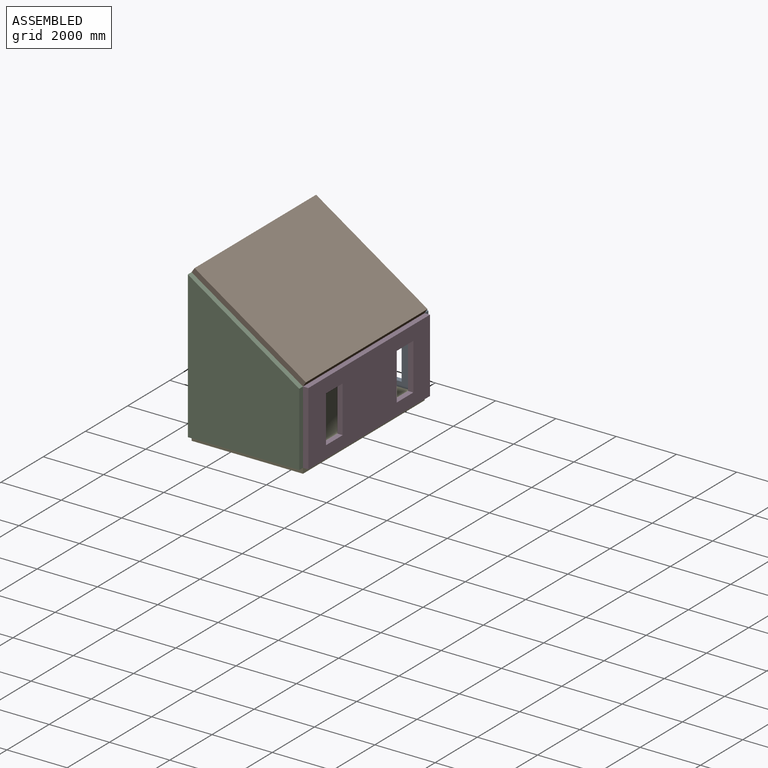
[diagram: assembled view]
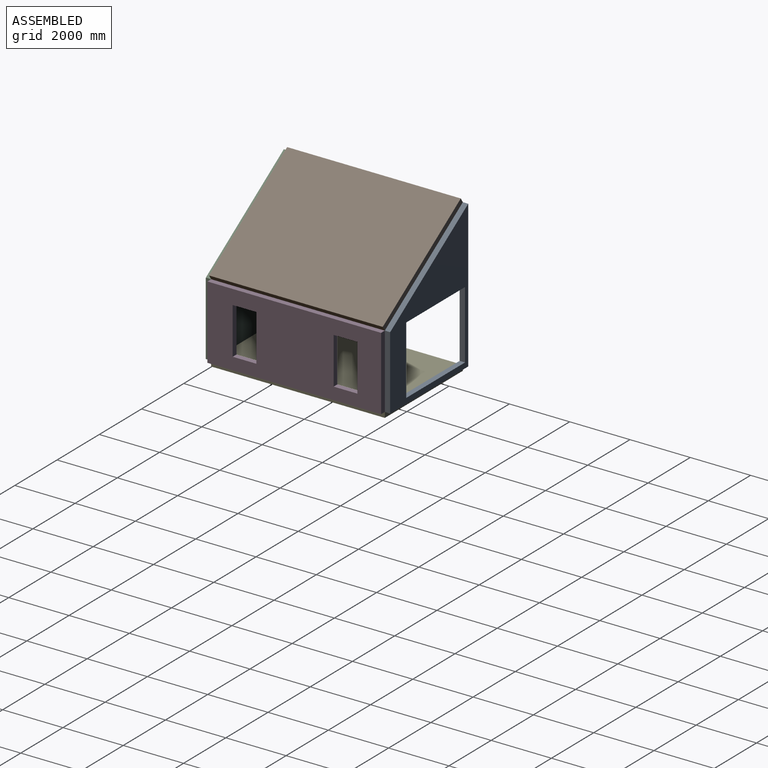
[diagram: assembled view, second angle]
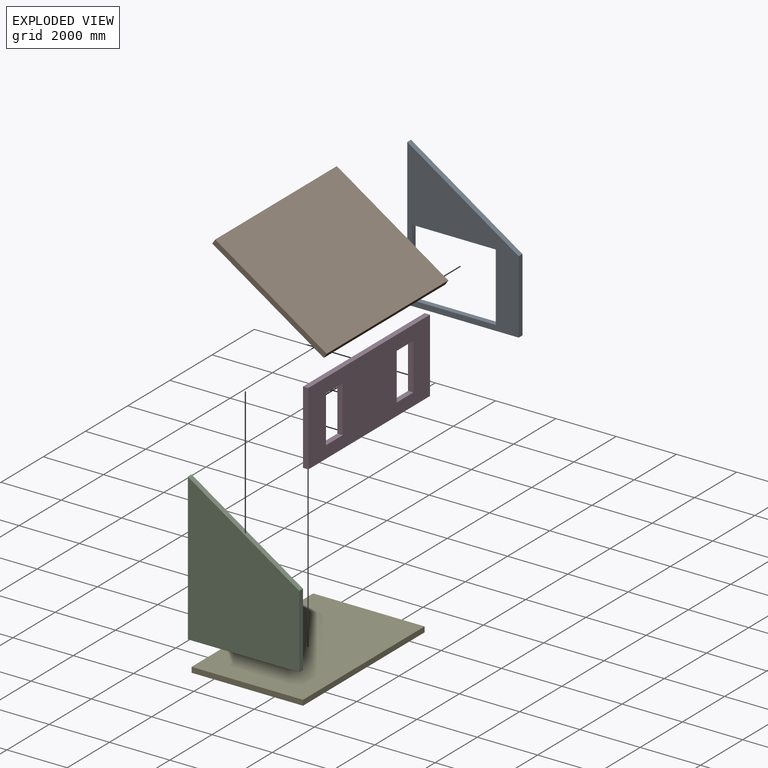
[diagram: exploded view]
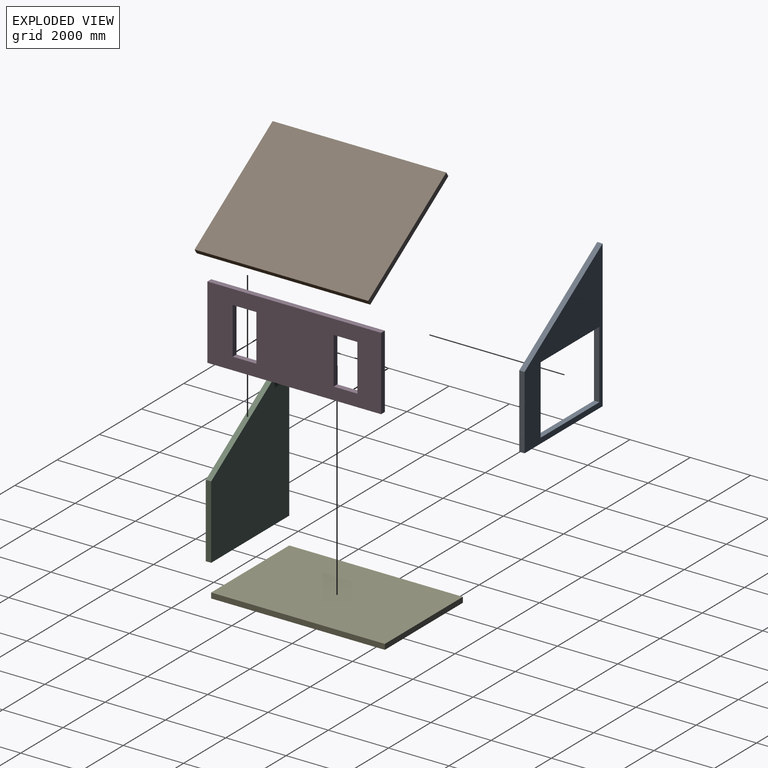
[diagram: exploded view, second angle]
ASSEMBLY  parts=5 mates=4
PART A: 10 faces, bbox 177.8x3695.7x4876.8 mm
  f0: plane 4876.8x3695.7mm, normal (1,0,0), area 7229985.5mm2, adj f2,f3,f4,f5,f6,f7,f8,f9
  f1: plane 4876.8x3695.7mm, normal (-1,0,0), area 7229985.5mm2, adj f2,f3,f4,f5,f6,f7,f8,f9
  f2: plane 2438.4x177.8mm, normal (0,-1,0), area 433547.5mm2, adj f0,f1,f3,f5
  f3: plane 3695.7x177.8mm, normal (0,0,-1), area 657095.5mm2, adj f0,f1,f2,f4
  f4: plane 4876.8x177.8mm, normal (0,1,0), area 867095mm2, adj f0,f1,f3,f5
  f5: plane 3695.7x2438.4mm, normal (0,-0.55,0.83), area 787234.3mm2, adj f0,f1,f2,f4
  f6: plane 2260.6x177.8mm, normal (0,1,0), area 401934.7mm2, adj f0,f1,f7,f9
  f7: plane 2781.3x177.8mm, normal (0,0,1), area 494515.1mm2, adj f0,f1,f6,f8
  f8: plane 2260.6x177.8mm, normal (0,-1,0), area 401934.7mm2, adj f0,f1,f7,f9
  f9: plane 2781.3x177.8mm, normal (0,0,-1), area 494515.1mm2, adj f0,f1,f6,f8
PART B: 6 faces, bbox 177.8x5759.5x4427.7 mm
  f0: plane 5759.45x177.8mm, normal (0,0,1), area 1024030.2mm2, adj f1,f3,f4,f5
  f1: plane 4427.65x177.8mm, normal (0,-1,0), area 787236.5mm2, adj f0,f2,f4,f5
  f2: plane 5759.45x177.8mm, normal (0,0,-1), area 1024030.2mm2, adj f1,f3,f4,f5
  f3: plane 4427.65x177.8mm, normal (0,1,0), area 787236.5mm2, adj f0,f2,f4,f5
  f4: plane 5759.45x4427.65mm, normal (1,0,0), area 25500839.2mm2, adj f0,f1,f2,f3
  f5: plane 5759.45x4427.65mm, normal (-1,0,0), area 25500839.2mm2, adj f0,f1,f2,f3
PART C: 6 faces, bbox 177.8x3695.7x4876.8 mm
  f0: plane 4876.8x177.8mm, normal (0,-1,0), area 867095mm2, adj f1,f3,f4,f5
  f1: plane 3695.7x177.8mm, normal (0,0,-1), area 657095.5mm2, adj f0,f2,f4,f5
  f2: plane 2438.4x177.8mm, normal (0,1,0), area 433547.5mm2, adj f1,f3,f4,f5
  f3: plane 3695.7x2438.4mm, normal (0,0.55,0.83), area 787234.3mm2, adj f0,f2,f4,f5
  f4: plane 4876.8x3695.7mm, normal (1,0,0), area 13517392.3mm2, adj f0,f1,f2,f3
  f5: plane 4876.8x3695.7mm, normal (-1,0,0), area 13517392.3mm2, adj f0,f1,f2,f3
PART D: 14 faces, bbox 177.8x5759.5x2438.4 mm
  f0: plane 5759.45x2438.4mm, normal (1,0,0), area 11603847.8mm2, adj f2,f3,f4,f5,f6,f7,f8,f9
  f1: plane 5759.45x2438.4mm, normal (-1,0,0), area 11603847.8mm2, adj f2,f3,f4,f5,f6,f7,f8,f9
  f2: plane 5759.45x177.8mm, normal (0,0,1), area 1024030.2mm2, adj f0,f1,f3,f5
  f3: plane 2438.4x177.8mm, normal (0,-1,0), area 433547.5mm2, adj f0,f1,f2,f4
  f4: plane 5759.45x177.8mm, normal (0,0,-1), area 1024030.2mm2, adj f0,f1,f3,f5
  f5: plane 2438.4x177.8mm, normal (0,1,0), area 433547.5mm2, adj f0,f1,f2,f4
  f6: plane 787.4x177.8mm, normal (0,0,-1), area 139999.7mm2, adj f0,f1,f7,f9
  f7: plane 1549.4x177.8mm, normal (0,1,0), area 275483.3mm2, adj f0,f1,f6,f8
  f8: plane 787.4x177.8mm, normal (0,0,1), area 139999.7mm2, adj f0,f1,f7,f9
  f9: plane 1549.4x177.8mm, normal (0,-1,0), area 275483.3mm2, adj f0,f1,f6,f8
  f10: plane 787.4x177.8mm, normal (0,0,-1), area 139999.7mm2, adj f0,f1,f11,f13
  f11: plane 1549.4x177.8mm, normal (0,1,0), area 275483.3mm2, adj f0,f1,f10,f12
  f12: plane 787.4x177.8mm, normal (0,0,1), area 139999.7mm2, adj f0,f1,f11,f13
  f13: plane 1549.4x177.8mm, normal (0,-1,0), area 275483.3mm2, adj f0,f1,f10,f12
PART E: 6 faces, bbox 177.8x5759.5x3695.7 mm
  f0: plane 5759.45x177.8mm, normal (0,0,1), area 1024030.2mm2, adj f1,f3,f4,f5
  f1: plane 3695.7x177.8mm, normal (0,-1,0), area 657095.5mm2, adj f0,f2,f4,f5
  f2: plane 5759.45x177.8mm, normal (0,0,-1), area 1024030.2mm2, adj f1,f3,f4,f5
  f3: plane 3695.7x177.8mm, normal (0,1,0), area 657095.5mm2, adj f0,f2,f4,f5
  f4: plane 5759.45x3695.7mm, normal (1,0,0), area 21285199.4mm2, adj f0,f1,f2,f3
  f5: plane 5759.45x3695.7mm, normal (-1,0,0), area 21285199.4mm2, adj f0,f1,f2,f3
PLACE A rot(axis=(0,0,1),90deg) t=(-8686.75,2463.13,-3081.75)mm
PLACE B rot(axis=(0,-1,0),56.6deg) t=(-4533.57,-9272.2,452.17)mm
PLACE C rot(axis=(0,0,-1),90deg) t=(-755.29,-3296.32,2033.37)mm
PLACE D t=(-2873.17,-1899.76,-3081.75)mm
PLACE E rot(axis=(0,1,0),90deg) t=(-1545.34,-1580.87,-3081.75)mm fixed
MATE fastened D.f1 <-> C.f2  axis (-1,0,0) through (-2873.17,-3296.32,-1862.55)mm
MATE fastened A.f1 <-> E.f3  axis (0,-1,0) through (-4721.02,2463.13,-3081.75)mm
MATE fastened C.f3 <-> B.f5  axis (0.55,0,0.83) through (-4721.02,-3296.32,575.85)mm
MATE fastened C.f1 <-> E.f5  axis (0,0,-1) through (-4721.02,-3296.32,-3081.75)mm
